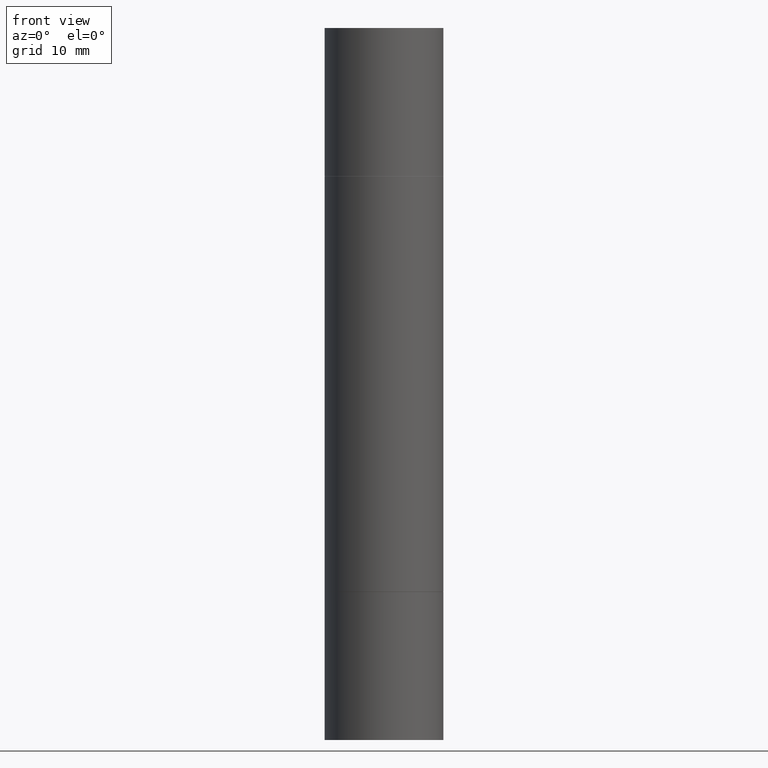
[diagram: clean part render]
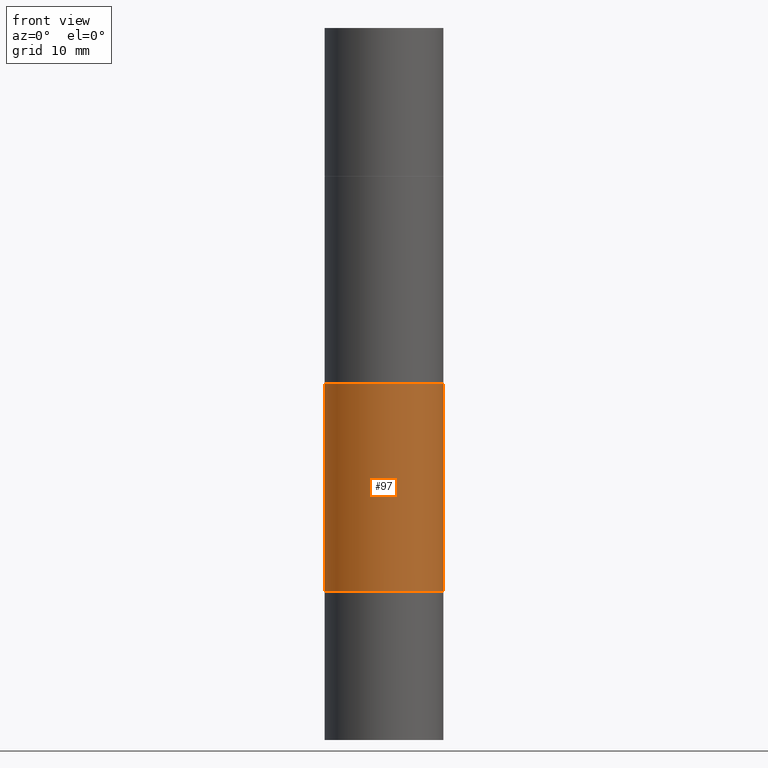
[diagram: same view with one face highlighted and labeled with its STEP entity id]
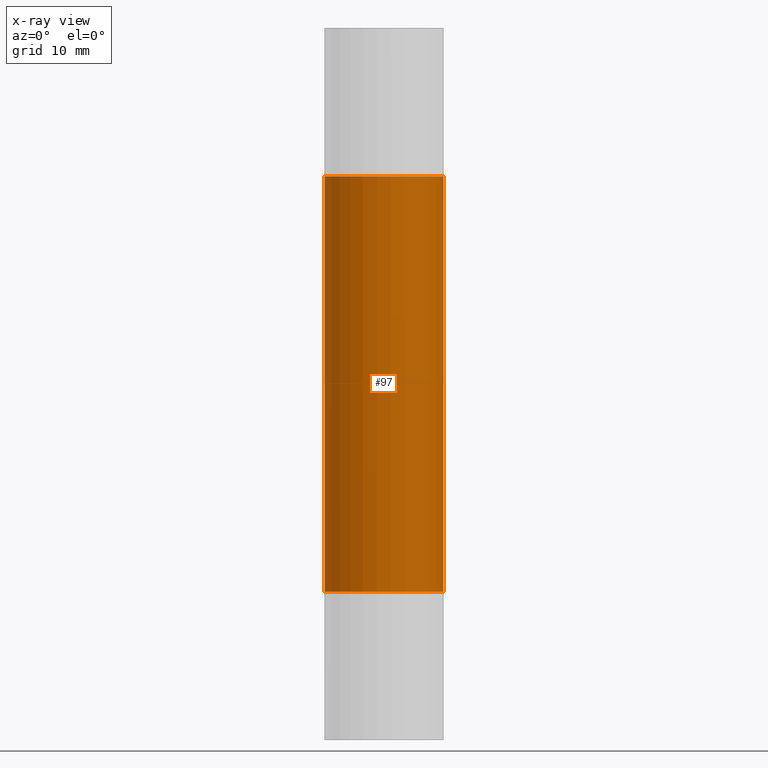
[diagram: x-ray of the same camera — body ghosted, the highlighted face saturated]
A machine part, front view. The second image highlights one B-rep face of the part: STEP entity #97.
The next image is the same camera in x-ray: the body ghosted, the highlighted face saturated — about 0% of this face is hidden behind the body in this view.
In plain terms, the highlighted cylindrical surface (partial cylindrical patch) has radius 6.35 mm, axis along (-0, -0, -1).
Its self-contained STEP definition (entity closure, byte-faithful):
#33 = EDGE_CURVE ( 'NONE', #172, #618, #635, .T. ) ;
#42 = CIRCLE ( 'NONE', #496, 0.2500000000000000000 ) ;
#50 = CYLINDRICAL_SURFACE ( 'NONE', #57, 0.2499999999999998335 ) ;
#57 = AXIS2_PLACEMENT_3D ( 'NONE', #567, #464, #102 ) ;
#80 = DIRECTION ( 'NONE',  ( -2.445468806185136877E-29, -3.492890411551753071E-15, -1.000000000000000000 ) ) ;
#97 = ADVANCED_FACE ( 'NONE', ( #207 ), #50, .T. ) ;
#99 = EDGE_LOOP ( 'NONE', ( #636, #145, #525, #302 ) ) ;
#102 = DIRECTION ( 'NONE',  ( 1.000000000000000000, -6.982962677686267499E-15, 0.000000000000000000 ) ) ;
#130 = CARTESIAN_POINT ( 'NONE',  ( -0.2500000000000000000, -4.693112891255996450E-16, -0.6259999999999990017 ) ) ;
#139 = EDGE_CURVE ( 'NONE', #618, #444, #663, .T. ) ;
#143 = VERTEX_POINT ( 'NONE', #541 ) ;
#145 = ORIENTED_EDGE ( 'NONE', *, *, #33, .T. ) ;
#171 = CARTESIAN_POINT ( 'NONE',  ( 5.805542945883514935E-29, -8.288776698413628688E-15, -2.374000000000000110 ) ) ;
#172 = VERTEX_POINT ( 'NONE', #130 ) ;
#180 = DIRECTION ( 'NONE',  ( 2.445468806185136597E-29, 3.492890411551752677E-15, 1.000000000000000000 ) ) ;
#194 = AXIS2_PLACEMENT_3D ( 'NONE', #171, #378, #655 ) ;
#198 = CARTESIAN_POINT ( 'NONE',  ( 0.2500000000000000000, -1.003451736783519537E-14, -2.374000000000000110 ) ) ;
#207 = FACE_OUTER_BOUND ( 'NONE', #99, .T. ) ;
#256 = DIRECTION ( 'NONE',  ( -2.445468806185136877E-29, -3.492890411551753071E-15, -1.000000000000000000 ) ) ;
#302 = ORIENTED_EDGE ( 'NONE', *, *, #634, .F. ) ;
#378 = DIRECTION ( 'NONE',  ( -2.445468806185136597E-29, 3.491481338843145583E-15, 1.000000000000000000 ) ) ;
#380 = DIRECTION ( 'NONE',  ( 1.000000000000000000, -6.982962677686266711E-15, 0.000000000000000000 ) ) ;
#390 = VECTOR ( 'NONE', #256, 39.37007874015748143 ) ;
#444 = VERTEX_POINT ( 'NONE', #198 ) ;
#447 = VECTOR ( 'NONE', #80, 39.37007874015748143 ) ;
#464 = DIRECTION ( 'NONE',  ( -2.445468806185136597E-29, -3.492890411551752677E-15, -1.000000000000000000 ) ) ;
#496 = AXIS2_PLACEMENT_3D ( 'NONE', #650, #180, #380 ) ;
#525 = ORIENTED_EDGE ( 'NONE', *, *, #139, .T. ) ;
#541 = CARTESIAN_POINT ( 'NONE',  ( 0.2500000000000000000, -3.930176457990049608E-15, -0.6259999999999990017 ) ) ;
#546 = LINE ( 'NONE', #550, #447 ) ;
#550 = CARTESIAN_POINT ( 'NONE',  ( 0.2499999999999998335, -1.222229829501391012E-14, -2.999999999999999112 ) ) ;
#567 = CARTESIAN_POINT ( 'NONE',  ( 0.000000000000000000, -1.047655762559234344E-14, -2.999999999999999112 ) ) ;
#598 = CARTESIAN_POINT ( 'NONE',  ( -0.2500000000000000000, -3.522097508821832131E-15, -2.374000000000000110 ) ) ;
#613 = EDGE_CURVE ( 'NONE', #172, #143, #42, .T. ) ;
#618 = VERTEX_POINT ( 'NONE', #598 ) ;
#622 = CARTESIAN_POINT ( 'NONE',  ( -0.2499999999999998335, -8.761433126149462132E-15, -2.999999999999999112 ) ) ;
#634 = EDGE_CURVE ( 'NONE', #143, #444, #546, .T. ) ;
#635 = LINE ( 'NONE', #622, #390 ) ;
#636 = ORIENTED_EDGE ( 'NONE', *, *, #613, .F. ) ;
#650 = CARTESIAN_POINT ( 'NONE',  ( 5.805542945883514935E-29, -2.184435788568482141E-15, -0.6259999999999990017 ) ) ;
#655 = DIRECTION ( 'NONE',  ( 1.000000000000000000, -6.982962677686266711E-15, 0.000000000000000000 ) ) ;
#663 = CIRCLE ( 'NONE', #194, 0.2500000000000000000 ) ;